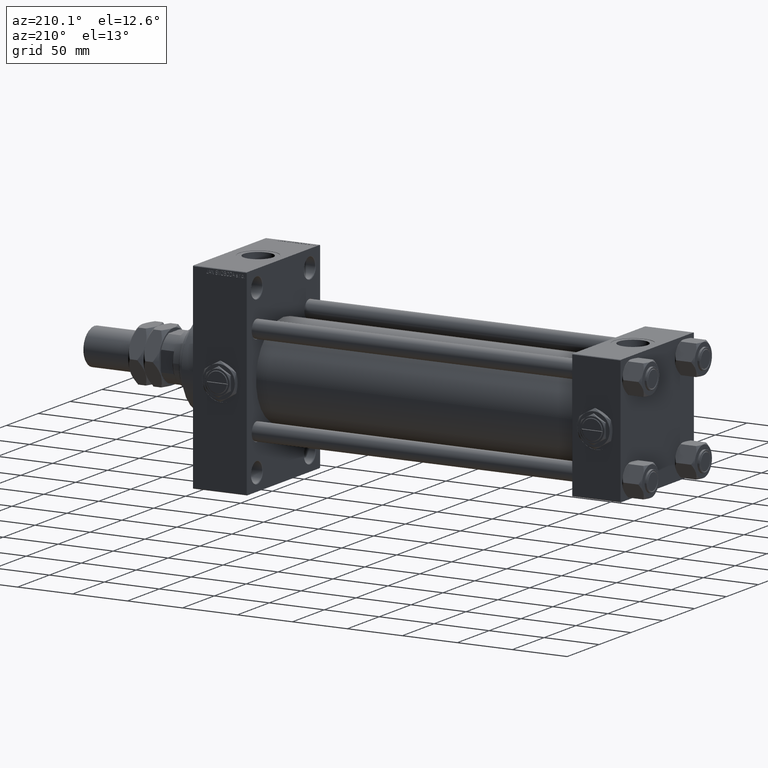
[diagram: clean part render]
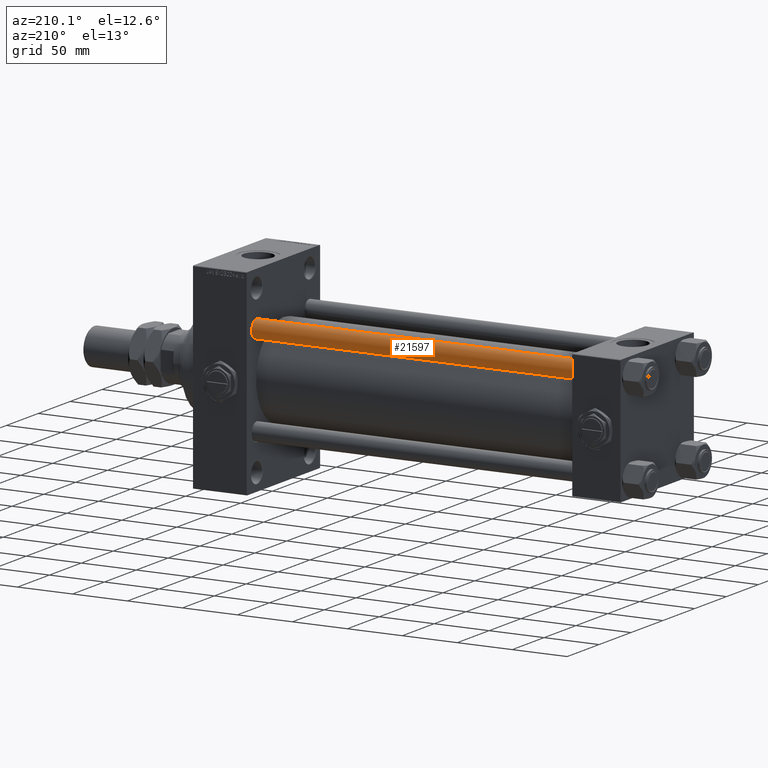
[diagram: same view with one face highlighted and labeled with its STEP entity id]
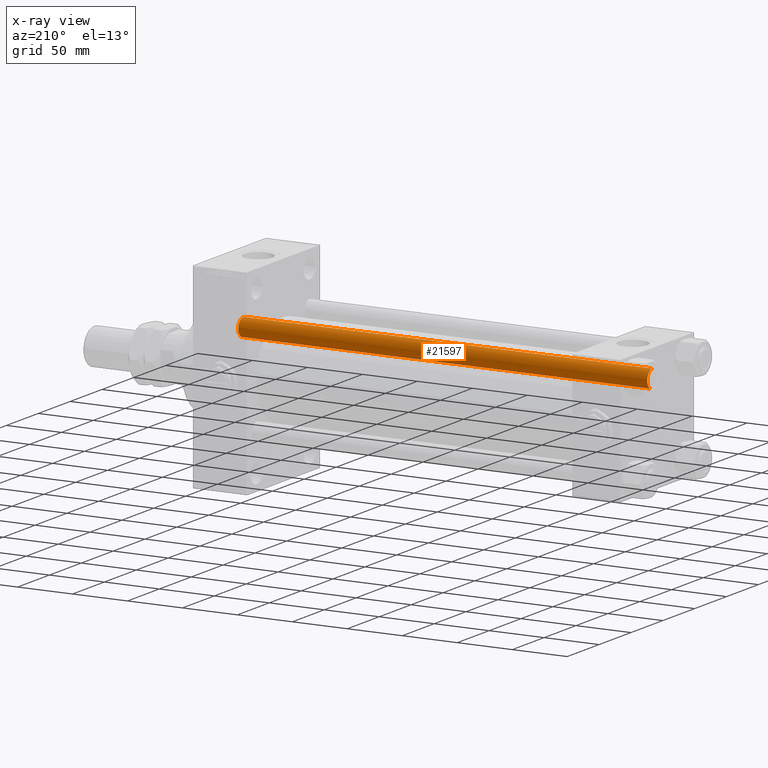
[diagram: x-ray of the same camera — body ghosted, the highlighted face saturated]
A machine part, auxiliary view. The second image highlights one B-rep face of the part: STEP entity #21597.
The next image is the same camera in x-ray: the body ghosted, the highlighted face saturated — about 0% of this face is hidden behind the body in this view.
In plain terms, the highlighted cylindrical surface (edge-blend (fillet) strip) has radius 8 mm, axis along (-1, -0, 0).
Its self-contained STEP definition (entity closure, byte-faithful):
#1506 = VERTEX_POINT ( 'NONE', #30147 ) ;
#2553 = DIRECTION ( 'NONE',  ( -0.000000000000000000, -0.000000000000000000, -1.000000000000000000 ) ) ;
#2809 = AXIS2_PLACEMENT_3D ( 'NONE', #50684, #2553, #18182 ) ;
#11193 = EDGE_CURVE ( 'NONE', #22008, #1506, #23899, .T. ) ;
#13067 = CARTESIAN_POINT ( 'NONE',  ( 8.000000000000000000, 9.797174393178825657E-16, 372.5000000000000000 ) ) ;
#13954 = VERTEX_POINT ( 'NONE', #13067 ) ;
#14042 = ORIENTED_EDGE ( 'NONE', *, *, #11193, .F. ) ;
#14185 = CARTESIAN_POINT ( 'NONE',  ( 0.000000000000000000, 0.000000000000000000, 372.5000000000000000 ) ) ;
#14673 = EDGE_CURVE ( 'NONE', #22008, #13954, #42601, .T. ) ;
#18118 = CIRCLE ( 'NONE', #47197, 8.000000000000000000 ) ;
#18182 = DIRECTION ( 'NONE',  ( -1.000000000000000000, 0.000000000000000000, 0.000000000000000000 ) ) ;
#18262 = VECTOR ( 'NONE', #20002, 1000.000000000000000 ) ;
#18583 = VECTOR ( 'NONE', #23813, 1000.000000000000000 ) ;
#20002 = DIRECTION ( 'NONE',  ( -0.000000000000000000, -0.000000000000000000, -1.000000000000000000 ) ) ;
#21277 = VERTEX_POINT ( 'NONE', #28659 ) ;
#21597 = ADVANCED_FACE ( 'NONE', ( #37955 ), #42106, .T. ) ;
#22008 = VERTEX_POINT ( 'NONE', #31105 ) ;
#23018 = DIRECTION ( 'NONE',  ( -0.000000000000000000, -0.000000000000000000, 1.000000000000000000 ) ) ;
#23551 = CARTESIAN_POINT ( 'NONE',  ( 8.000000000000000000, 9.797174393178825657E-16, 373.0000000000000000 ) ) ;
#23813 = DIRECTION ( 'NONE',  ( -0.000000000000000000, -0.000000000000000000, -1.000000000000000000 ) ) ;
#23899 = LINE ( 'NONE', #39501, #18262 ) ;
#26148 = DIRECTION ( 'NONE',  ( 1.000000000000000000, 0.000000000000000000, 0.000000000000000000 ) ) ;
#26397 = ORIENTED_EDGE ( 'NONE', *, *, #14673, .T. ) ;
#28659 = CARTESIAN_POINT ( 'NONE',  ( 8.000000000000000000, 9.797174393178825657E-16, 0.5000000000000559552 ) ) ;
#30147 = CARTESIAN_POINT ( 'NONE',  ( -8.000000000000000000, 0.000000000000000000, 0.5000000000000559552 ) ) ;
#30484 = ORIENTED_EDGE ( 'NONE', *, *, #49515, .T. ) ;
#31105 = CARTESIAN_POINT ( 'NONE',  ( -8.000000000000000000, 0.000000000000000000, 372.5000000000000000 ) ) ;
#33291 = EDGE_CURVE ( 'NONE', #21277, #1506, #18118, .T. ) ;
#37955 = FACE_OUTER_BOUND ( 'NONE', #50226, .T. ) ;
#38888 = CARTESIAN_POINT ( 'NONE',  ( 0.000000000000000000, 0.000000000000000000, 0.5000000000000559552 ) ) ;
#39501 = CARTESIAN_POINT ( 'NONE',  ( -8.000000000000000000, 0.000000000000000000, 373.0000000000000000 ) ) ;
#42106 = CYLINDRICAL_SURFACE ( 'NONE', #2809, 8.000000000000000000 ) ;
#42601 = CIRCLE ( 'NONE', #45082, 8.000000000000000000 ) ;
#45082 = AXIS2_PLACEMENT_3D ( 'NONE', #14185, #46179, #26148 ) ;
#46179 = DIRECTION ( 'NONE',  ( 0.000000000000000000, 0.000000000000000000, -1.000000000000000000 ) ) ;
#46700 = DIRECTION ( 'NONE',  ( 1.000000000000000000, 0.000000000000000000, 0.000000000000000000 ) ) ;
#46978 = LINE ( 'NONE', #23551, #18583 ) ;
#47197 = AXIS2_PLACEMENT_3D ( 'NONE', #38888, #23018, #46700 ) ;
#49515 = EDGE_CURVE ( 'NONE', #13954, #21277, #46978, .T. ) ;
#50226 = EDGE_LOOP ( 'NONE', ( #26397, #30484, #50585, #14042 ) ) ;
#50585 = ORIENTED_EDGE ( 'NONE', *, *, #33291, .T. ) ;
#50684 = CARTESIAN_POINT ( 'NONE',  ( 0.000000000000000000, 0.000000000000000000, 373.0000000000000000 ) ) ;